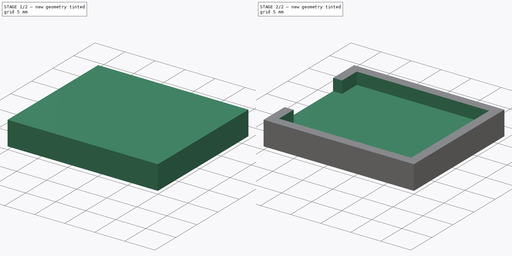
[diagram: build sequence overview — one tinted view per stage of 2, left to right]
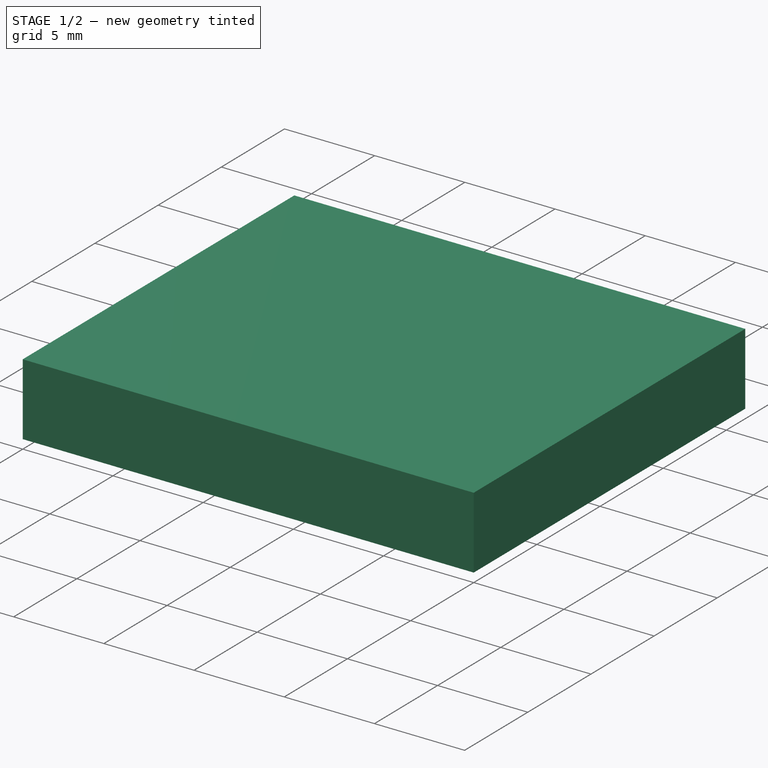
[diagram: stage 1 of 2 — iso view after this stage's code; geometry added in this stage tinted green]
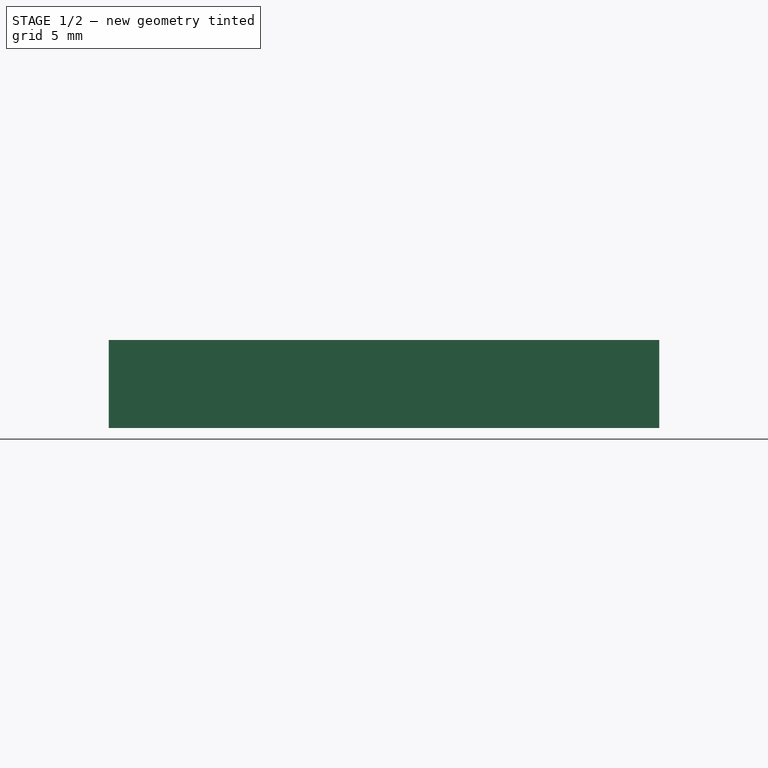
[diagram: stage 1 of 2 — front view after this stage's code; geometry added in this stage tinted green]
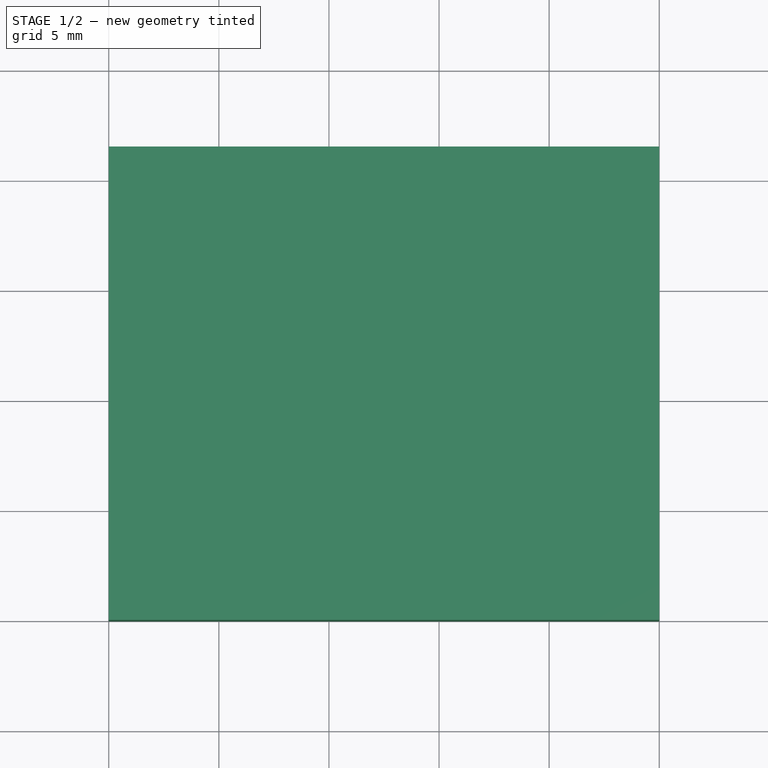
[diagram: stage 1 of 2 — top view after this stage's code; geometry added in this stage tinted green]
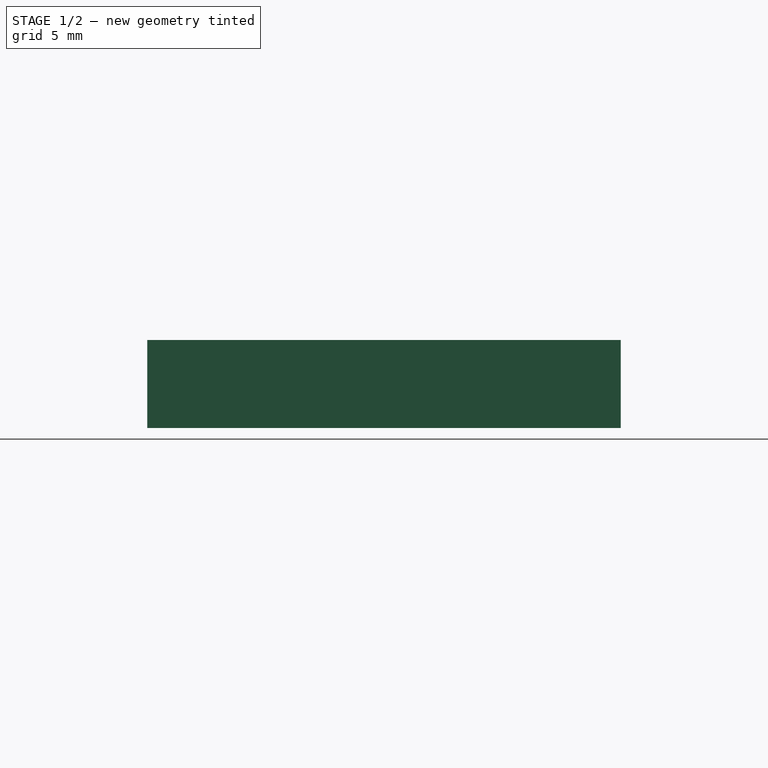
[diagram: stage 1 of 2 — right view after this stage's code; geometry added in this stage tinted green]
FCSTD DOCUMENT  (FreeCAD 0.21R33771 (Git))
Label: test
License: All rights reserved
LicenseURL: https://en.wikipedia.org/wiki/All_rights_reserved
objects: Sketcher::SketchObject×2, PartDesign::Pad×1, PartDesign::Pocket×1, PartDesign::Body×1
note: 7 computed .brp shape members not serialized (recipe doc carries the construction recipe); baked Part::Feature solids carry a one-line shape summary decoded from their .brp

FEATURE [Sketcher::SketchObject] Sketch
  FullyConstrained = true
  MapMode = 5
  Support = -> [XY_Plane]
  sketch-geometry (7):
    g0: LineSegment StartX=0 StartY=21.5 StartZ=0 EndX=25 EndY=21.5 EndZ=0
    g1: LineSegment StartX=25 StartY=21.5 StartZ=0 EndX=25 EndY=0 EndZ=0
    g2: LineSegment StartX=25 StartY=0 StartZ=0 EndX=0 EndY=0 EndZ=0
    g3: LineSegment StartX=0 StartY=0 StartZ=0 EndX=0 EndY=21.5 EndZ=0
    g4: GeomPoint X=25 Y=21.5 Z=0
    g5: GeomPoint X=0 Y=0 Z=0
    g6: GeomPoint X=25 Y=21.5 Z=0
  constraints (14):
    c: Coincident(g0,g1)
    c: Coincident(g1,g2)
    c: Coincident(g2,g3)
    c: Coincident(g3,g0)
    c: Horizontal(g0)
    c: Horizontal(g2)
    c: Vertical(g1)
    c: Vertical(g3)
    c: DistanceY(g3,g3) = 21.5
    c: DistanceX(g0,g0) = 25
    c: Coincident(g4,g0)
    c: Coincident(g5,g-1)
    c: Coincident(g6,g0)
    c: Coincident(g2,g5)
FEATURE [PartDesign::Pad] Pad
  Direction = (0,0,1)
  Length = 4
  Length2 = 10
  Profile = -> Sketch
  ReferenceAxis = -> Sketch [N_Axis]
  Type = 0
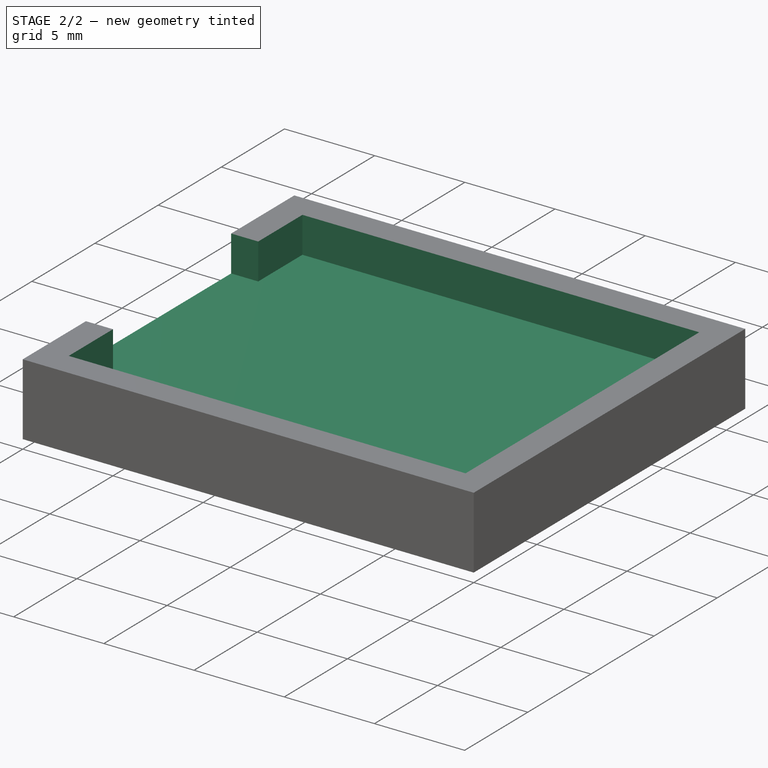
[diagram: stage 2 of 2 — iso view after this stage's code; geometry added in this stage tinted green]
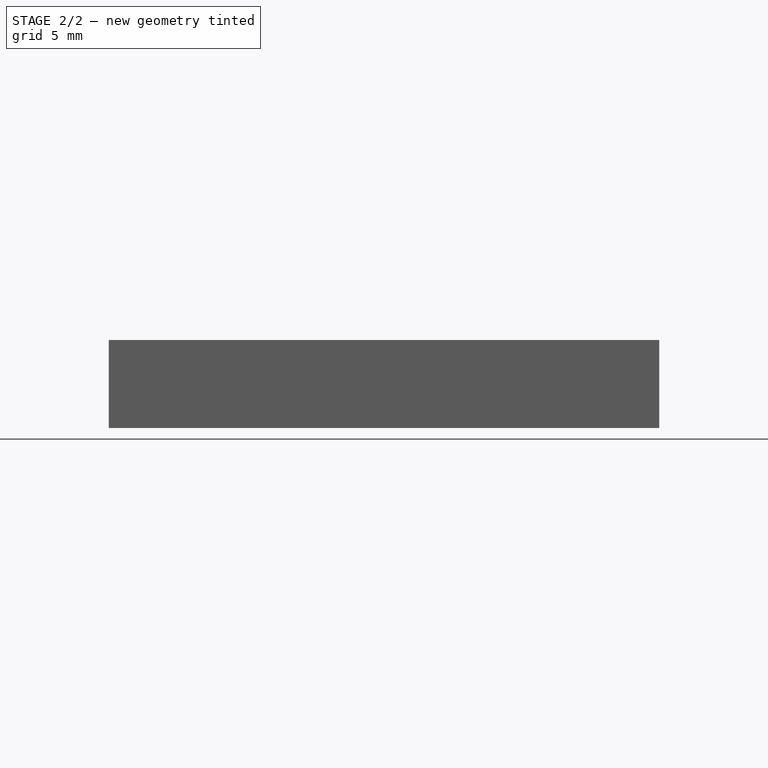
[diagram: stage 2 of 2 — front view after this stage's code; geometry added in this stage tinted green]
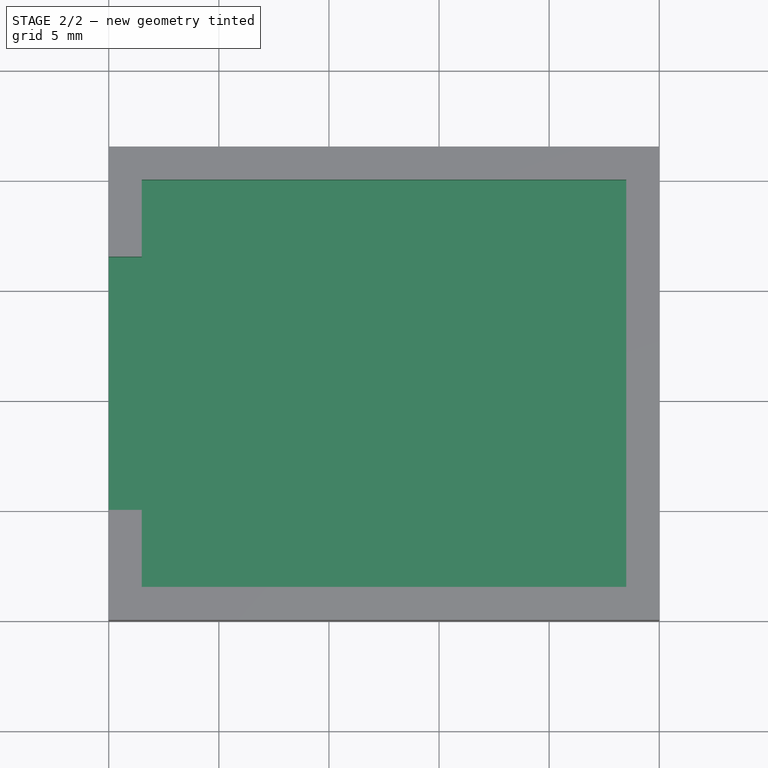
[diagram: stage 2 of 2 — top view after this stage's code; geometry added in this stage tinted green]
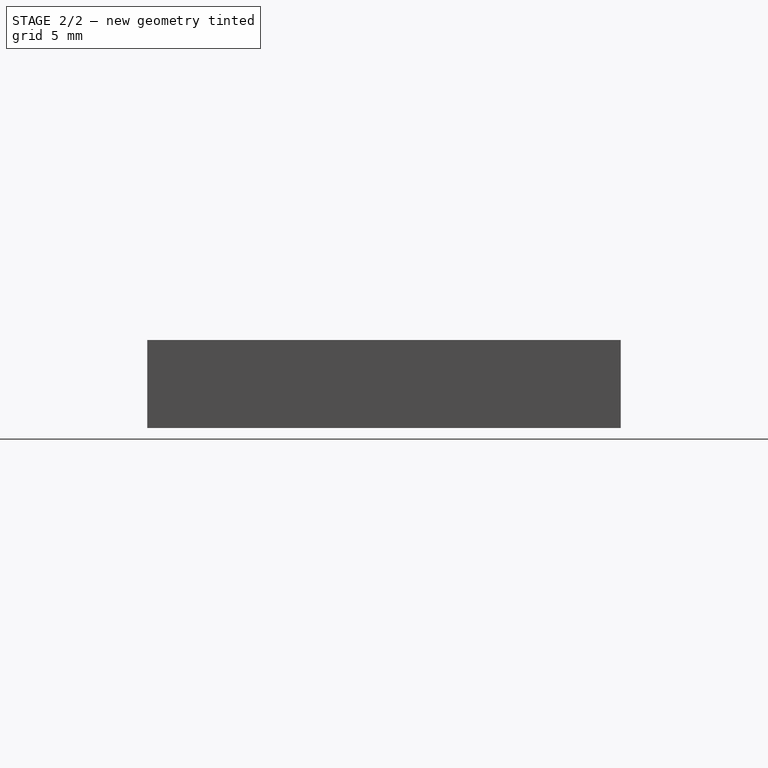
[diagram: stage 2 of 2 — right view after this stage's code; geometry added in this stage tinted green]
FEATURE [Sketcher::SketchObject] Sketch001
  ExternalGeometry = -> [Pad]
  FullyConstrained = true
  MapMode = 5
  Placement = pos=(0,0,4) rot=(0,0,1;0rad)
  Support = -> [Pad]
  sketch-geometry (10):
    g0: LineSegment StartX=1.5 StartY=20 StartZ=0 EndX=23.5 EndY=20 EndZ=0
    g1: LineSegment StartX=23.5 StartY=20 StartZ=0 EndX=23.5 EndY=1.5 EndZ=0
    g2: LineSegment StartX=23.5 StartY=1.5 StartZ=0 EndX=1.5 EndY=1.5 EndZ=0
    g3: GeomPoint X=1.5 Y=16.5 Z=0
    g4: GeomPoint X=1.5 Y=5 Z=0
    g5: LineSegment StartX=1.5 StartY=5 StartZ=0 EndX=4e-16 EndY=5 EndZ=0
    g6: LineSegment StartX=4e-16 StartY=5 StartZ=0 EndX=4e-16 EndY=16.5 EndZ=0
    g7: LineSegment StartX=4e-16 StartY=16.5 StartZ=0 EndX=1.5 EndY=16.5 EndZ=0
    g8: LineSegment StartX=1.5 StartY=5 StartZ=0 EndX=1.5 EndY=1.5 EndZ=0
    g9: LineSegment StartX=1.5 StartY=16.5 StartZ=0 EndX=1.5 EndY=20 EndZ=0
  constraints (26):
    c: Coincident(g0,g1)
    c: Coincident(g1,g2)
    c: Horizontal(g0)
    c: Horizontal(g2)
    c: Vertical(g1)
    c: DistanceY(g2,g0) = 18.5
    c: DistanceX(g2,g2) = 22
    c: DistanceX(g0,g-3) = 1.5
    c: DistanceY(g0,g-3) = 1.5
    c: DistanceY(g3,g0) = 3.5
    c: DistanceY(g2,g4) = 3.5
    c: Coincident(g5,g4)
    c: Horizontal(g5)
    c: Coincident(g6,g5)
    c: Vertical(g6)
    c: Coincident(g7,g6)
    c: Coincident(g7,g3)
    c: Horizontal(g7)
    c: Coincident(g8,g5)
    c: Coincident(g8,g2)
    c: Vertical(g8)
    c: Coincident(g9,g7)
    c: Coincident(g9,g0)
    c: Vertical(g9)
    c: DistanceX(g0,g0) = 22
    c: DistanceX(g5,g5) = 1.5
FEATURE [PartDesign::Pocket] Pocket
  BaseFeature = -> Pad
  Direction = (0,0,-1)
  Length = 2
  Length2 = 5
  Profile = -> Sketch001
  ReferenceAxis = -> Sketch001 [N_Axis]
  Type = 0
FEATURE [PartDesign::Body] Body
  Group = -> [Sketch,Pad,Sketch001,Pocket]
  Origin = -> Origin
  Tip = -> Pocket
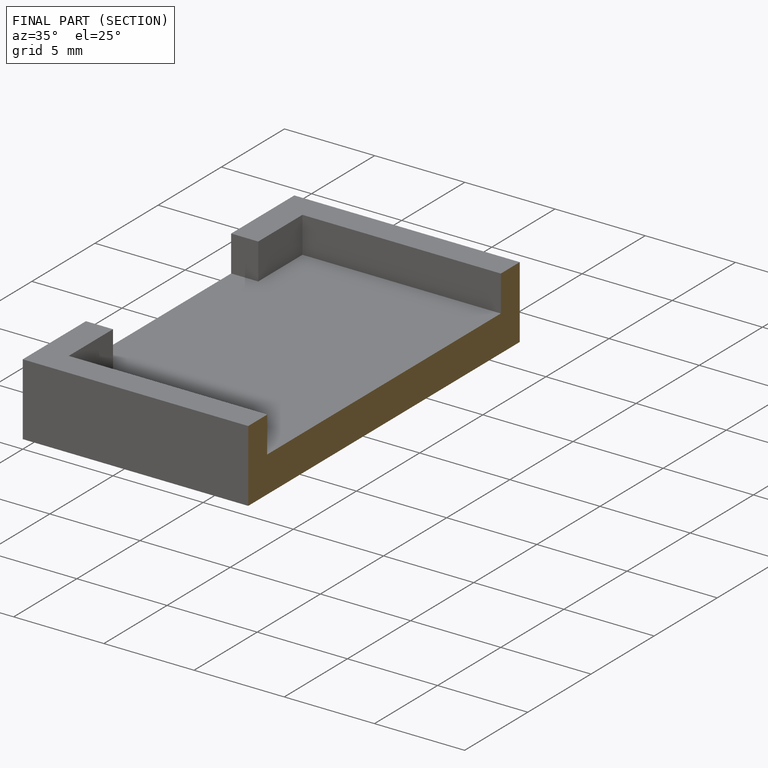
[diagram: finished part — half-section view (interior)]
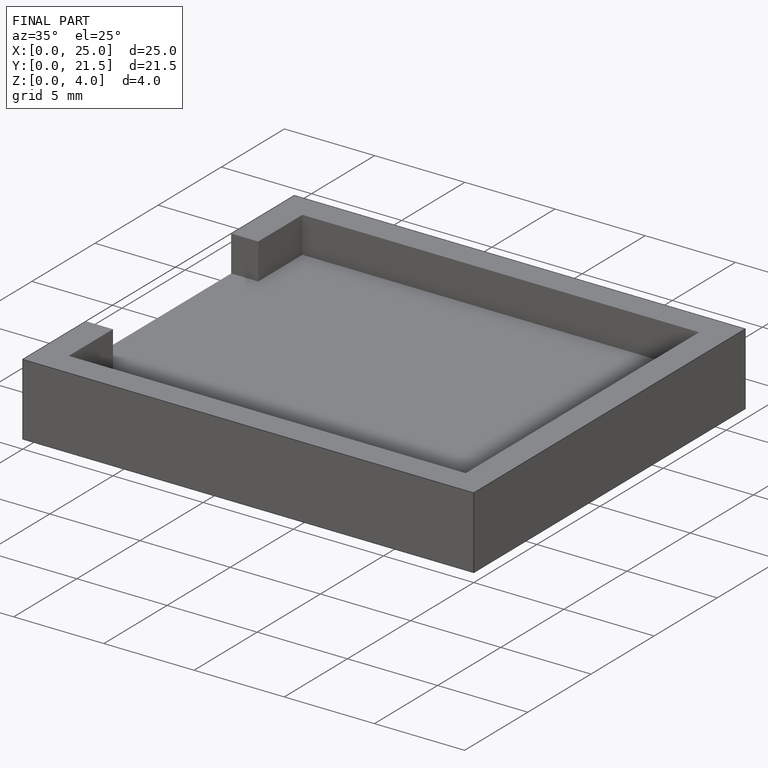
[diagram: finished part — iso view with bounding-box wireframe]
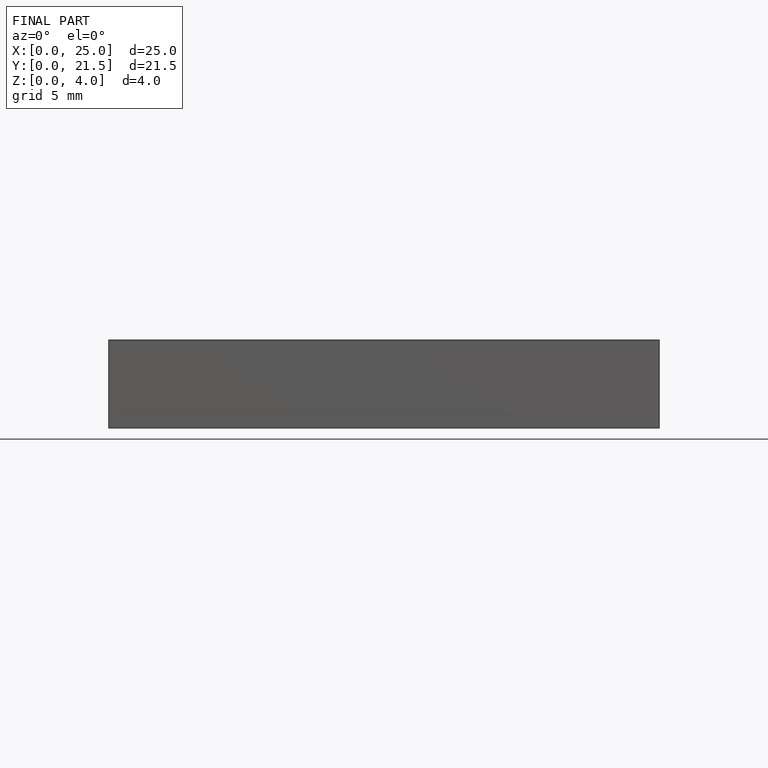
[diagram: finished part — front view with bounding-box wireframe]
